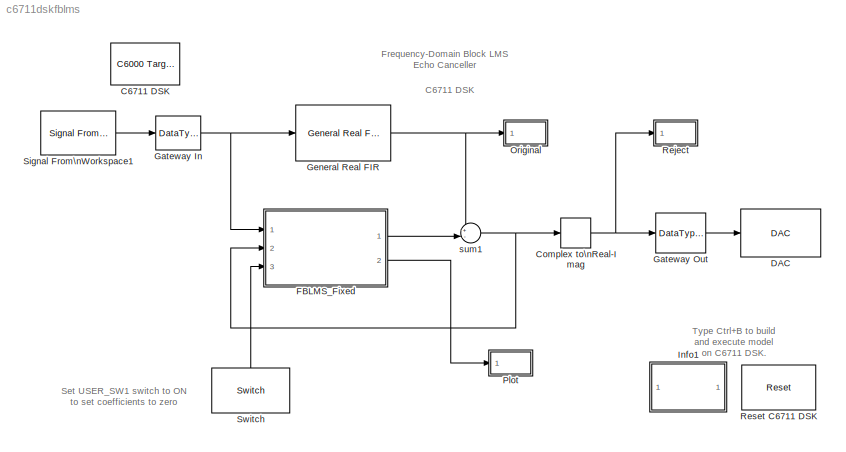
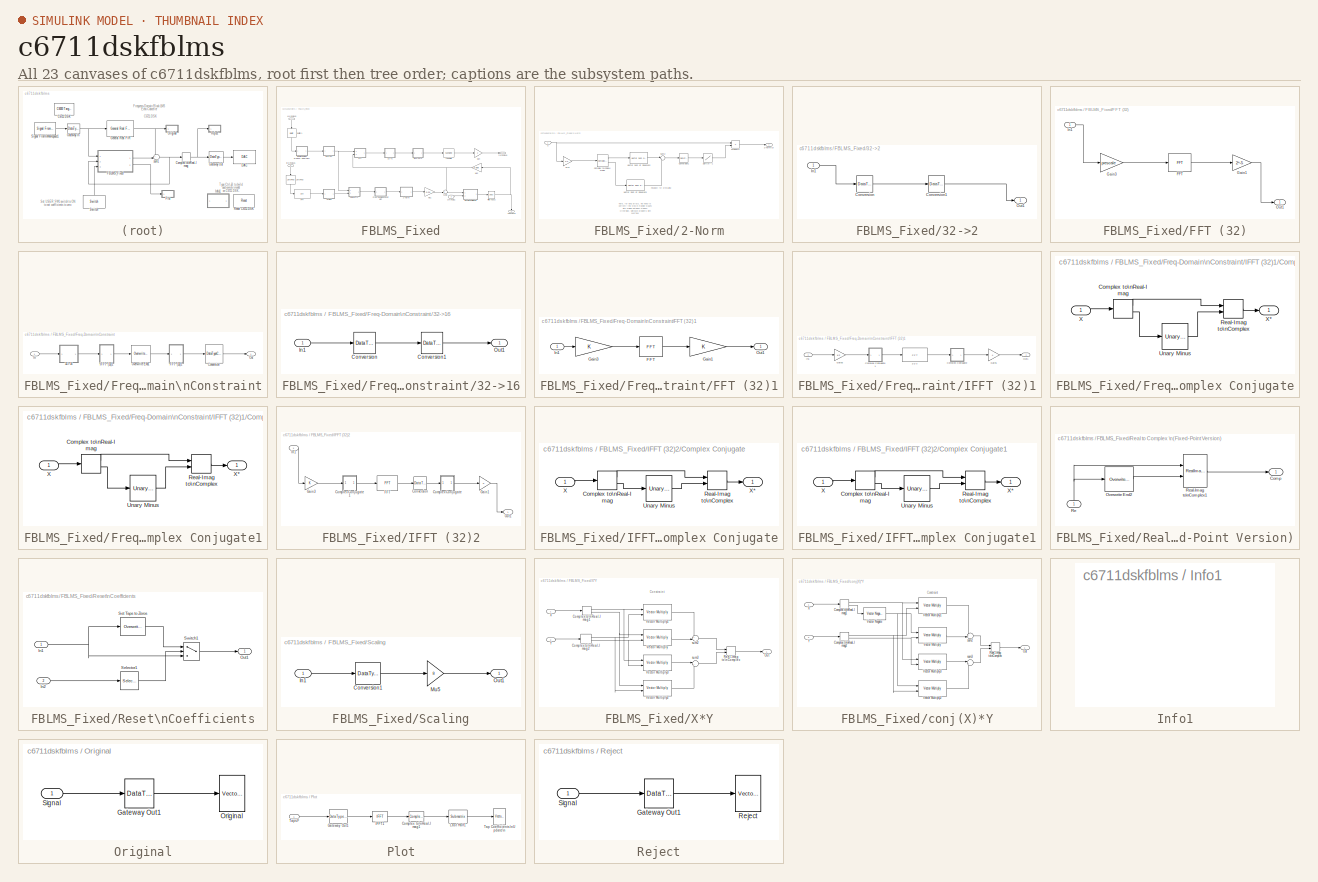
[diagram: thumbnail index - all 23 canvases of the model, root first then tree order]
MODEL c6711dskfblms
KIND model
CONFIG PreLoadFcn = load handel; audiofrag = int16(y(1:2^16).*2^14); clear y;
BLOCK [Reference] C6711 DSK  REF=c6000tgtpreflib/C6000 Target\nPreferences
  Ports = []
  ShowPortLabels = on
  SourceBlock = c6000tgtpreflib/C6000 Target\nPreferences
  SourceType = C6000 Target Preferences
  UserData = DataTag0
  UserDataPersistent = on
BLOCK [ComplexToRealImag] Complex to\nReal-Imag
  Output = Real
  Ports = [1, 1]
BLOCK [Reference] DAC  REF=c6711dsklib/DAC
  DacAtten = 0.0
  OverflowMode = Saturate
  Ports = [1]
  Scaling = Integer Value
  SourceBlock = c6711dsklib/DAC
  SourceType = C6711DSK DAC
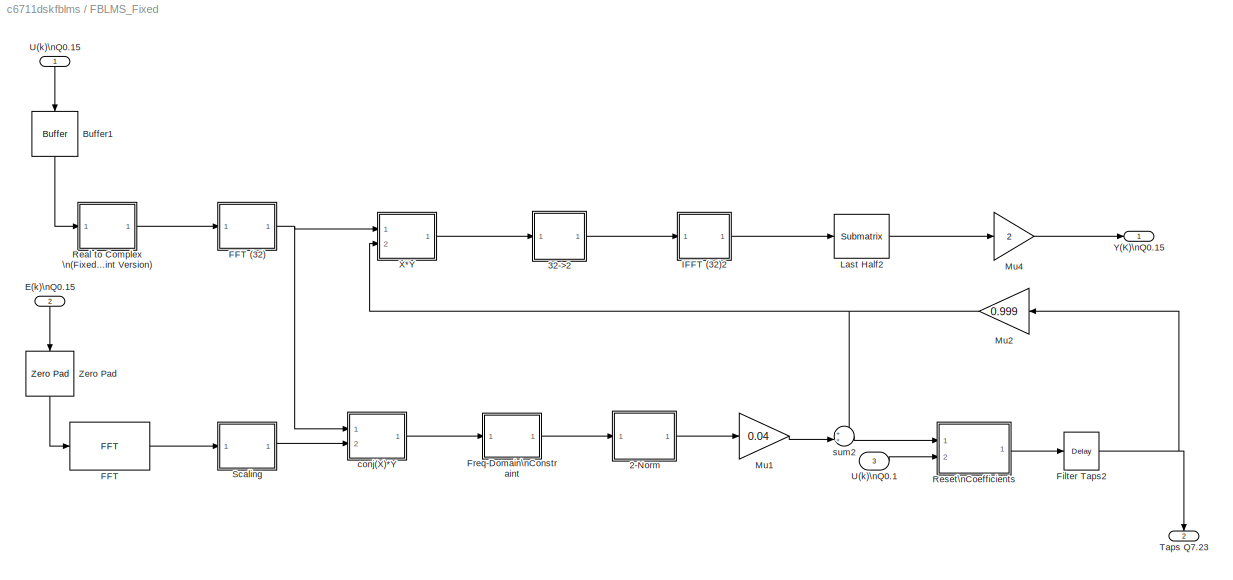
BLOCK [SubSystem] FBLMS_Fixed
  MinAlgLoopOccurrences = off
  Ports = [3, 2]
  PropExecContextAcrossSSBoundary = on
  RTWSystemCode = Auto
  TreatAsAtomicUnit = off
BLOCK [SubSystem] FBLMS_Fixed/2-Norm
  AncestorBlock = FixedBlocks/2-Norm
  MinAlgLoopOccurrences = off
  Ports = [1, 1]
  PropExecContextAcrossSSBoundary = on
  RTWSystemCode = Auto
  TreatAsAtomicUnit = off
BLOCK [Outport] FBLMS_Fixed/2-Norm/2-norm(u)
  BusOutputAsStruct = off
  IconDisplay = Port number
BLOCK [ComplexToRealImag] FBLMS_Fixed/2-Norm/Complex to\nReal-Imag1
  Output = Real and imag
  Ports = [1, 2]
BLOCK [DataTypeConversion] FBLMS_Fixed/2-Norm/Conversion1
  OutDataType = ufix(16)
  OutDataTypeMode = Specify via dialog
  OutScaling = 2^-13
  RndMeth = Floor
BLOCK [Gain] FBLMS_Fixed/2-Norm/Mu1
  Gain = 1/2
  OutDataType = sfix(32)
  OutScaling = 2^-31
  ParameterDataTypeMode = Inherit via internal rule
  SaturateOnIntegerOverflow = off
BLOCK [Product] FBLMS_Fixed/2-Norm/Product3
  InputSameDT = off
  OutDataType = sfix(32)
  OutDataTypeMode = Inherit via internal rule
  OutScaling = 2^30
  Ports = [2, 1]
  RndMeth = Floor
BLOCK [Lookup] FBLMS_Fixed/2-Norm/Sqrt(x)^-1
  DialogController = Simulink.DDGSource
  InputValues = [0.004 0.01 linspace(0.02,8,62)]
  LookUpMeth = Use Input Nearest
  OutDataType = ufix(16)
  OutDataTypeMode = Specify via dialog
  OutScaling = 2^-12
  OutputValues = 1./sqrt([0.004 0.01 linspace(0.02,8,62)])
BLOCK [Sum] FBLMS_Fixed/2-Norm/Sum2
  IconShape = round
  InputSameDT = off
  Inputs = |++
  OutDataType = ufix(16)
  OutScaling = 2^14
  Ports = [2, 1]
BLOCK [Reference] FBLMS_Fixed/2-Norm/Vector Sum of Squares2  REF=tic62dsplib/Vector Sum of Squares
  Ports = [1, 1]
  SourceBlock = tic62dsplib/Vector Sum of Squares
  SourceType = Vector Sum of Squares
BLOCK [Reference] FBLMS_Fixed/2-Norm/Vector Sum of Squares3  REF=tic62dsplib/Vector Sum of Squares
  Ports = [1, 1]
  SourceBlock = tic62dsplib/Vector Sum of Squares
  SourceType = Vector Sum of Squares
BLOCK [Inport] FBLMS_Fixed/2-Norm/u
  IconDisplay = Port number
  LatchInput = off
BLOCK [SubSystem] FBLMS_Fixed/32->2
  MinAlgLoopOccurrences = off
  Ports = [1, 1]
  PropExecContextAcrossSSBoundary = on
  RTWSystemCode = Auto
  TreatAsAtomicUnit = off
BLOCK [DataTypeConversion] FBLMS_Fixed/32->2/Conversion
  OutDataTypeMode = Specify via dialog
  OutScaling = 2^-10
  RndMeth = Floor
BLOCK [DataTypeConversion] FBLMS_Fixed/32->2/Conversion1
  ConvertRealWorld = Stored Integer (SI)
  OutDataType = sfrac(16)
  OutDataTypeMode = Specify via dialog
  OutScaling = 2^-7
  RndMeth = Floor
  SaturateOnIntegerOverflow = off
BLOCK [Inport] FBLMS_Fixed/32->2/In1
  IconDisplay = Port number
  LatchInput = off
BLOCK [Outport] FBLMS_Fixed/32->2/Out1
  BusOutputAsStruct = off
  IconDisplay = Port number
BLOCK [Reference] FBLMS_Fixed/Buffer1  REF=dspbuff3/Buffer
  N = 128
  Ports = [1, 1]
  SourceBlock = dspbuff3/Buffer
  SourceType = Buffer
  V = 64
  ic = 0
BLOCK [Inport] FBLMS_Fixed/E(k)\nQ0.15
  IconDisplay = Port number
  LatchInput = off
  Port = 2
BLOCK [Reference] FBLMS_Fixed/FFT  REF=tic62dsplib/FFT
  Ports = [1, 1]
  SourceBlock = tic62dsplib/FFT
  SourceType = FFT
BLOCK [SubSystem] FBLMS_Fixed/FFT (32)
  AncestorBlock = FixedBlocks/FFT (32)
  MaskCallbackString = x = get_param(gcb,'MaskValues');\ntscale = [2 2 4 4 8 8 16 16 32 32];\nindx = round(log(eval(x{1}))/log(2)-2);\nscale = tscale(indx);\nx{3} = num2str(scale/eval(x{2}));\nset_param(gcb,'MaskValues',x);|x = get_param(gcb,'MaskValues');\ntscale = [2 2 4 4 8 8 16 16 32 32];\nindx = round(log(eval(x{1}))/log(2)-2);\nscale = tscale(indx);\nx{3} = num2str(scale/eval(x{2}));\nset_param(gcb,'MaskValues',x)...<+2ch>
  MaskDescription = This block performs an IFFT with output returned in normal (NOT bit-reversed order). \nThe implemented uses the FFT block.  This includes some scaling to avoid overflow \nAND some scaling to compensate for scaling factors in FFT16X16R block
  MaskEnableString = on,on,off
  MaskIconFrame = on
  MaskIconOpaque = on
  MaskIconRotate = none
  MaskIconUnits = autoscale
  MaskPromptString = Length (8 to 16384)|Prescaling (8:32->1/4, 64:512->1/8)|Postscaling
  MaskStyleString = edit,edit,edit
  MaskTabNameString = ,,
  MaskToolTipString = on,on,on
  MaskTunableValueString = on,off,on
  MaskValueString = 128|1/4|32
  MaskVarAliasString = ,,
  MaskVariables = nlen=@1;prescale=@2;postscale=@3;
  MaskVisibilityString = on,on,on
  MinAlgLoopOccurrences = off
  Ports = [1, 1]
  PropExecContextAcrossSSBoundary = on
  RTWSystemCode = Auto
  TreatAsAtomicUnit = off
BLOCK [Reference] FBLMS_Fixed/FFT (32)/FFT  REF=tic62dsplib/FFT
  Ports = [1, 1]
  SourceBlock = tic62dsplib/FFT
  SourceType = FFT
BLOCK [Gain] FBLMS_Fixed/FFT (32)/Gain1
  Gain = 2^-5
  OutDataTypeMode = Inherit via internal rule
  ParameterDataTypeMode = Specify via dialog
BLOCK [Gain] FBLMS_Fixed/FFT (32)/Gain3
  Gain = prescale
BLOCK [Inport] FBLMS_Fixed/FFT (32)/In1
  IconDisplay = Port number
  LatchInput = off
BLOCK [Outport] FBLMS_Fixed/FFT (32)/Out1
  BusOutputAsStruct = off
  IconDisplay = Port number
BLOCK [Reference] FBLMS_Fixed/Filter Taps2  REF=dspsigops/Delay
  Ports = [1, 1]
  SourceBlock = dspsigops/Delay
  SourceType = Delay
  delay = 1
  dif_ic_for_ch = off
  dif_ic_for_dly = off
  dly_unit = Samples
  ic = 0
  ic_detail = off
  reset_popup = None
BLOCK [SubSystem] FBLMS_Fixed/Freq-Domain\nConstraint
  MinAlgLoopOccurrences = off
  Ports = [1, 1]
  PropExecContextAcrossSSBoundary = on
  RTWSystemCode = Auto
  TreatAsAtomicUnit = off
BLOCK [SubSystem] FBLMS_Fixed/Freq-Domain\nConstraint/32->16
  MinAlgLoopOccurrences = off
  Ports = [1, 1]
  PropExecContextAcrossSSBoundary = on
  RTWSystemCode = Auto
  TreatAsAtomicUnit = off
BLOCK [DataTypeConversion] FBLMS_Fixed/Freq-Domain\nConstraint/32->16/Conversion
  OutDataTypeMode = Specify via dialog
  OutScaling = 2^-9
  RndMeth = Nearest
BLOCK [DataTypeConversion] FBLMS_Fixed/Freq-Domain\nConstraint/32->16/Conversion1
  ConvertRealWorld = Stored Integer (SI)
  OutDataType = sfrac(16)
  OutDataTypeMode = Specify via dialog
  OutScaling = 2^-7
  RndMeth = Floor
  SaturateOnIntegerOverflow = off
BLOCK [Inport] FBLMS_Fixed/Freq-Domain\nConstraint/32->16/In1
  IconDisplay = Port number
  LatchInput = off
BLOCK [Outport] FBLMS_Fixed/Freq-Domain\nConstraint/32->16/Out1
  BusOutputAsStruct = off
  IconDisplay = Port number
BLOCK [DataTypeConversion] FBLMS_Fixed/Freq-Domain\nConstraint/Conversion
  OutDataTypeMode = Specify via dialog
  OutScaling = 2^-14
  RndMeth = Floor
  SaturateOnIntegerOverflow = off
BLOCK [SubSystem] FBLMS_Fixed/Freq-Domain\nConstraint/FFT (32)1
  MaskCallbackString = x = get_param(gcb,'MaskValues');\ntscale = [2 2 4 4 8 8 16 16 32 32];\nindx = round(log(eval(x{1}))/log(2)-2);\nscale = tscale(indx);\nx{3} = num2str(scale/eval(x{2}));\nset_param(gcb,'MaskValues',x);|x = get_param(gcb,'MaskValues');\ntscale = [2 2 4 4 8 8 16 16 32 32];\nindx = round(log(eval(x{1}))/log(2)-2);\nscale = tscale(indx);\nx{3} = num2str(scale/eval(x{2}));\nset_param(gcb,'MaskValues',x)...<+2ch>
  MaskDescription = This block performs an IFFT with output returned in normal (NOT bit-reversed order). \nThe implemented uses the FFT block.  This includes some scaling to avoid overflow \nAND some scaling to compensate for scaling factors in FFT16X16R block
  MaskEnableString = on,on,off
  MaskIconFrame = on
  MaskIconOpaque = on
  MaskIconRotate = none
  MaskIconUnits = autoscale
  MaskPromptString = Length (8 to 16384)|Prescaling (8:32->1/4, 64:512->1/8)|Postscaling
  MaskStyleString = edit,edit,edit
  MaskTabNameString = ,,
  MaskToolTipString = on,on,on
  MaskTunableValueString = on,off,on
  MaskValueString = 128|1/4|32
  MaskVarAliasString = ,,
  MaskVariables = nlen=@1;prescale=@2;postscale=@3;
  MaskVisibilityString = on,on,on
  MinAlgLoopOccurrences = off
  Ports = [1, 1]
  PropExecContextAcrossSSBoundary = on
  RTWSystemCode = Auto
  TreatAsAtomicUnit = off
BLOCK [Reference] FBLMS_Fixed/Freq-Domain\nConstraint/FFT (32)1/FFT  REF=tic62dsplib/FFT
  Ports = [1, 1]
  SourceBlock = tic62dsplib/FFT
  SourceType = FFT
BLOCK [Gain] FBLMS_Fixed/Freq-Domain\nConstraint/FFT (32)1/Gain1
  OutDataTypeMode = Inherit via internal rule
  ParameterDataTypeMode = Specify via dialog
BLOCK [Gain] FBLMS_Fixed/Freq-Domain\nConstraint/FFT (32)1/Gain3
BLOCK [Inport] FBLMS_Fixed/Freq-Domain\nConstraint/FFT (32)1/In1
  IconDisplay = Port number
  LatchInput = off
BLOCK [Outport] FBLMS_Fixed/Freq-Domain\nConstraint/FFT (32)1/Out1
  BusOutputAsStruct = off
  IconDisplay = Port number
BLOCK [SubSystem] FBLMS_Fixed/Freq-Domain\nConstraint/IFFT (32)1
  MaskCallbackString = x = get_param(gcb,'MaskValues');\nscale = 2.^(floor(log(eval(x{1}))/log(4))+1);\nx{3} = num2str(1/(scale*eval(x{2})));\nset_param(gcb,'MaskValues',x);|x = get_param(gcb,'MaskValues');\nscale = 2.^(floor(log(eval(x{1}))/log(4))+1);\nx{3} = num2str(1/(scale*eval(x{2})));\nset_param(gcb,'MaskValues',x);|
  MaskEnableString = on,on,off
  MaskIconFrame = on
  MaskIconOpaque = on
  MaskIconRotate = none
  MaskIconUnits = autoscale
  MaskInitialization = scale = 2.^(floor(log(nlen)/log(4))+1);\npostscale = 1/(scale*prescale);
  MaskPromptString = Length (8 to 16384)|Prescaling|Postscaling
  MaskStyleString = edit,edit,edit
  MaskTabNameString = ,,
  MaskToolTipString = on,on,on
  MaskTunableValueString = on,off,on
  MaskValueString = 128|1/2|0.125
  MaskVarAliasString = ,,
  MaskVariables = nlen=@1;prescale=@2;postscale=@3;
  MaskVisibilityString = on,on,on
  MinAlgLoopOccurrences = off
  Ports = [1, 1]
  PropExecContextAcrossSSBoundary = on
  RTWSystemCode = Auto
  TreatAsAtomicUnit = off
BLOCK [SubSystem] FBLMS_Fixed/Freq-Domain\nConstraint/IFFT (32)1/Complex Conjugate
  MinAlgLoopOccurrences = off
  Ports = [1, 1]
  PropExecContextAcrossSSBoundary = on
  RTWSystemCode = Auto
  TreatAsAtomicUnit = off
BLOCK [ComplexToRealImag] FBLMS_Fixed/Freq-Domain\nConstraint/IFFT (32)1/Complex Conjugate/Complex to\nReal-Imag
  Output = Real and imag
  Ports = [1, 2]
BLOCK [RealImagToComplex] FBLMS_Fixed/Freq-Domain\nConstraint/IFFT (32)1/Complex Conjugate/Real-Imag to\nComplex
  Input = Real and imag
  Ports = [2, 1]
BLOCK [Reference] FBLMS_Fixed/Freq-Domain\nConstraint/IFFT (32)1/Complex Conjugate/Unary Minus  REF=simulink/Math\nOperations/Unary Minus
  DoSatur = off
  Ports = [1, 1]
  SourceBlock = simulink/Math\nOperations/Unary Minus
  SourceType = Unary Minus
BLOCK [Inport] FBLMS_Fixed/Freq-Domain\nConstraint/IFFT (32)1/Complex Conjugate/X
  IconDisplay = Port number
  LatchInput = off
BLOCK [Outport] FBLMS_Fixed/Freq-Domain\nConstraint/IFFT (32)1/Complex Conjugate/X*
  BusOutputAsStruct = off
  IconDisplay = Port number
BLOCK [SubSystem] FBLMS_Fixed/Freq-Domain\nConstraint/IFFT (32)1/Complex Conjugate1
  MinAlgLoopOccurrences = off
  Ports = [1, 1]
  PropExecContextAcrossSSBoundary = on
  RTWSystemCode = Auto
  TreatAsAtomicUnit = off
BLOCK [ComplexToRealImag] FBLMS_Fixed/Freq-Domain\nConstraint/IFFT (32)1/Complex Conjugate1/Complex to\nReal-Imag
  Output = Real and imag
  Ports = [1, 2]
BLOCK [RealImagToComplex] FBLMS_Fixed/Freq-Domain\nConstraint/IFFT (32)1/Complex Conjugate1/Real-Imag to\nComplex
  Input = Real and imag
  Ports = [2, 1]
BLOCK [Reference] FBLMS_Fixed/Freq-Domain\nConstraint/IFFT (32)1/Complex Conjugate1/Unary Minus  REF=simulink/Math\nOperations/Unary Minus
  DoSatur = off
  Ports = [1, 1]
  SourceBlock = simulink/Math\nOperations/Unary Minus
  SourceType = Unary Minus
BLOCK [Inport] FBLMS_Fixed/Freq-Domain\nConstraint/IFFT (32)1/Complex Conjugate1/X
  IconDisplay = Port number
  LatchInput = off
BLOCK [Outport] FBLMS_Fixed/Freq-Domain\nConstraint/IFFT (32)1/Complex Conjugate1/X*
  BusOutputAsStruct = off
  IconDisplay = Port number
BLOCK [Reference] FBLMS_Fixed/Freq-Domain\nConstraint/IFFT (32)1/FFT  REF=tic62dsplib/FFT
  Ports = [1, 1]
  SourceBlock = tic62dsplib/FFT
  SourceType = FFT
BLOCK [Gain] FBLMS_Fixed/Freq-Domain\nConstraint/IFFT (32)1/Gain1
  Gain = 4
  ParameterDataTypeMode = Inherit via internal rule
BLOCK [Gain] FBLMS_Fixed/Freq-Domain\nConstraint/IFFT (32)1/Gain3
  Gain = 1/2
BLOCK [Inport] FBLMS_Fixed/Freq-Domain\nConstraint/IFFT (32)1/In1
  IconDisplay = Port number
  LatchInput = off
BLOCK [Outport] FBLMS_Fixed/Freq-Domain\nConstraint/IFFT (32)1/Out1
  BusOutputAsStruct = off
  IconDisplay = Port number
BLOCK [Inport] FBLMS_Fixed/Freq-Domain\nConstraint/In
  IconDisplay = Port number
  LatchInput = off
BLOCK [Outport] FBLMS_Fixed/Freq-Domain\nConstraint/Out
  BusOutputAsStruct = off
  IconDisplay = Port number
BLOCK [Reference] FBLMS_Fixed/Freq-Domain\nConstraint/Overwrite End1  REF=dspmtrx3/Overwrite Values
  AttributesFormatString = \\n
  ColEndIndex = 1
  ColEndMode = Last
  ColSpan = All columns
  ColStartIndex = 1
  ColStartMode = First
  ConstValue = 0
  DiagEndIndex = 4
  DiagEndMode = Index
  DiagSpan = Range of elements
  DiagStartIndex = 2
  DiagStartMode = Index
  OverWriteDiag = Submatrix
  Ports = [1, 1]
  RowEndIndex = -1
  RowEndMode = Last
  RowSpan = Range of rows
  RowStartIndex = 1
  RowStartMode = Middle
  SourceBlock = dspmtrx3/Overwrite Values
  SourceType = Overwrite Values
  valFrom2ndIP = Specify via dialog
BLOCK [SubSystem] FBLMS_Fixed/IFFT (32)2
  MaskCallbackString = x = get_param(gcb,'MaskValues');\nscale = 2.^(floor(log(eval(x{1}))/log(4))+1);\nx{3} = num2str(1/(scale*eval(x{2})));\nset_param(gcb,'MaskValues',x);|x = get_param(gcb,'MaskValues');\nscale = 2.^(floor(log(eval(x{1}))/log(4))+1);\nx{3} = num2str(1/(scale*eval(x{2})));\nset_param(gcb,'MaskValues',x);|
  MaskEnableString = on,on,off
  MaskIconFrame = on
  MaskIconOpaque = on
  MaskIconRotate = none
  MaskIconUnits = autoscale
  MaskInitialization = scale = 2.^(floor(log(nlen)/log(4))+1);\npostscale = 1/(scale*prescale);
  MaskPromptString = Length (8 to 16384)|Prescaling|Postscaling
  MaskStyleString = edit,edit,edit
  MaskTabNameString = ,,
  MaskToolTipString = on,on,on
  MaskTunableValueString = on,off,on
  MaskValueString = 128|1/2|0.125
  MaskVarAliasString = ,,
  MaskVariables = nlen=@1;prescale=@2;postscale=@3;
  MaskVisibilityString = on,on,on
  MinAlgLoopOccurrences = off
  Ports = [1, 1]
  PropExecContextAcrossSSBoundary = on
  RTWSystemCode = Auto
  TreatAsAtomicUnit = off
BLOCK [SubSystem] FBLMS_Fixed/IFFT (32)2/Complex Conjugate
  MinAlgLoopOccurrences = off
  Ports = [1, 1]
  PropExecContextAcrossSSBoundary = on
  RTWSystemCode = Auto
  TreatAsAtomicUnit = off
BLOCK [ComplexToRealImag] FBLMS_Fixed/IFFT (32)2/Complex Conjugate/Complex to\nReal-Imag
  Output = Real and imag
  Ports = [1, 2]
BLOCK [RealImagToComplex] FBLMS_Fixed/IFFT (32)2/Complex Conjugate/Real-Imag to\nComplex
  Input = Real and imag
  Ports = [2, 1]
BLOCK [Reference] FBLMS_Fixed/IFFT (32)2/Complex Conjugate/Unary Minus  REF=simulink/Math\nOperations/Unary Minus
  DoSatur = off
  Ports = [1, 1]
  SourceBlock = simulink/Math\nOperations/Unary Minus
  SourceType = Unary Minus
BLOCK [Inport] FBLMS_Fixed/IFFT (32)2/Complex Conjugate/X
  IconDisplay = Port number
  LatchInput = off
BLOCK [Outport] FBLMS_Fixed/IFFT (32)2/Complex Conjugate/X*
  BusOutputAsStruct = off
  IconDisplay = Port number
BLOCK [SubSystem] FBLMS_Fixed/IFFT (32)2/Complex Conjugate1
  MinAlgLoopOccurrences = off
  Ports = [1, 1]
  PropExecContextAcrossSSBoundary = on
  RTWSystemCode = Auto
  TreatAsAtomicUnit = off
BLOCK [ComplexToRealImag] FBLMS_Fixed/IFFT (32)2/Complex Conjugate1/Complex to\nReal-Imag
  Output = Real and imag
  Ports = [1, 2]
BLOCK [RealImagToComplex] FBLMS_Fixed/IFFT (32)2/Complex Conjugate1/Real-Imag to\nComplex
  Input = Real and imag
  Ports = [2, 1]
BLOCK [Reference] FBLMS_Fixed/IFFT (32)2/Complex Conjugate1/Unary Minus  REF=simulink/Math\nOperations/Unary Minus
  DoSatur = off
  Ports = [1, 1]
  SourceBlock = simulink/Math\nOperations/Unary Minus
  SourceType = Unary Minus
BLOCK [Inport] FBLMS_Fixed/IFFT (32)2/Complex Conjugate1/X
  IconDisplay = Port number
  LatchInput = off
BLOCK [Outport] FBLMS_Fixed/IFFT (32)2/Complex Conjugate1/X*
  BusOutputAsStruct = off
  IconDisplay = Port number
BLOCK [DataTypeConversion] FBLMS_Fixed/IFFT (32)2/Conversion
  OutDataTypeMode = Specify via dialog
  OutScaling = 2^-15
  RndMeth = Floor
  SaturateOnIntegerOverflow = off
BLOCK [Reference] FBLMS_Fixed/IFFT (32)2/FFT  REF=tic62dsplib/FFT
  Ports = [1, 1]
  SourceBlock = tic62dsplib/FFT
  SourceType = FFT
BLOCK [Gain] FBLMS_Fixed/IFFT (32)2/Gain1
BLOCK [Gain] FBLMS_Fixed/IFFT (32)2/Gain3
BLOCK [Inport] FBLMS_Fixed/IFFT (32)2/In1
  IconDisplay = Port number
  LatchInput = off
BLOCK [Outport] FBLMS_Fixed/IFFT (32)2/Out1
  BusOutputAsStruct = off
  IconDisplay = Port number
BLOCK [Reference] FBLMS_Fixed/Last Half2  REF=dspmtrx3/Submatrix
  ColEndIndex = 1
  ColEndMode = Last
  ColSpan = All columns
  ColStartIndex = 1
  ColStartMode = First
  Ports = [1, 1]
  RowEndIndex = L
  RowEndMode = Last
  RowSpan = Range of rows
  RowStartIndex = 0
  RowStartMode = Offset from middle
  SourceBlock = dspmtrx3/Submatrix
  SourceType = Submatrix
BLOCK [Gain] FBLMS_Fixed/Mu1
  Gain = 0.04
  OutDataType = sfix(32)
  OutDataTypeMode = Specify via dialog
  OutScaling = 2^-31
  ParameterDataTypeMode = Inherit via internal rule
  SaturateOnIntegerOverflow = off
BLOCK [Gain] FBLMS_Fixed/Mu2
  Gain = 0.999
  OutDataTypeMode = Inherit via back propagation
BLOCK [Gain] FBLMS_Fixed/Mu4
  Gain = 2
  ParameterDataTypeMode = Inherit via internal rule
BLOCK [SubSystem] FBLMS_Fixed/Real to Complex \n(Fixed-Point Version)
  MinAlgLoopOccurrences = off
  Ports = [1, 1]
  PropExecContextAcrossSSBoundary = on
  RTWSystemCode = Auto
  TreatAsAtomicUnit = off
BLOCK [Outport] FBLMS_Fixed/Real to Complex \n(Fixed-Point Version)/Comp
  BusOutputAsStruct = off
  IconDisplay = Port number
BLOCK [Reference] FBLMS_Fixed/Real to Complex \n(Fixed-Point Version)/Overwrite End2  REF=dspmtrx3/Overwrite Values
  AttributesFormatString = \\n
  ColEndIndex = 1
  ColEndMode = Last
  ColSpan = All columns
  ColStartIndex = 1
  ColStartMode = First
  ConstValue = 0
  DiagEndIndex = 4
  DiagEndMode = Index
  DiagSpan = Range of elements
  DiagStartIndex = 2
  DiagStartMode = Index
  OverWriteDiag = Submatrix
  Ports = [1, 1]
  RowEndIndex = -1
  RowEndMode = Last
  RowSpan = Range of rows
  RowStartIndex = 1
  RowStartMode = First
  SourceBlock = dspmtrx3/Overwrite Values
  SourceType = Overwrite Values
  valFrom2ndIP = Specify via dialog
BLOCK [Inport] FBLMS_Fixed/Real to Complex \n(Fixed-Point Version)/Re
  IconDisplay = Port number
  LatchInput = off
BLOCK [RealImagToComplex] FBLMS_Fixed/Real to Complex \n(Fixed-Point Version)/Real-Imag to\nComplex1
  Input = Real and imag
  Ports = [2, 1]
BLOCK [SubSystem] FBLMS_Fixed/Reset\nCoefficients
  MinAlgLoopOccurrences = off
  Ports = [2, 1]
  PropExecContextAcrossSSBoundary = on
  RTWSystemCode = Auto
  TreatAsAtomicUnit = off
BLOCK [Inport] FBLMS_Fixed/Reset\nCoefficients/In1
  IconDisplay = Port number
  LatchInput = off
BLOCK [Inport] FBLMS_Fixed/Reset\nCoefficients/In2
  IconDisplay = Port number
  LatchInput = off
  Port = 2
BLOCK [Outport] FBLMS_Fixed/Reset\nCoefficients/Out1
  BusOutputAsStruct = off
  IconDisplay = Port number
BLOCK [Selector] FBLMS_Fixed/Reset\nCoefficients/Selector1
  InputPortWidth = 3
  Ports = [1, 1]
BLOCK [Reference] FBLMS_Fixed/Reset\nCoefficients/Set Taps to Zeros  REF=dspmtrx3/Overwrite Values
  AttributesFormatString = \\n
  ColEndIndex = 1
  ColEndMode = Last
  ColSpan = All columns
  ColStartIndex = 1
  ColStartMode = First
  ConstValue = 0
  DiagEndIndex = 4
  DiagEndMode = Index
  DiagSpan = Range of elements
  DiagStartIndex = 2
  DiagStartMode = Index
  OverWriteDiag = Submatrix
  Ports = [1, 1]
  RowEndIndex = -1
  RowEndMode = Last
  RowSpan = All rows
  RowStartIndex = 1
  RowStartMode = Middle
  SourceBlock = dspmtrx3/Overwrite Values
  SourceType = Overwrite Values
  valFrom2ndIP = Specify via dialog
BLOCK [Switch] FBLMS_Fixed/Reset\nCoefficients/Switch1
  SaturateOnIntegerOverflow = off
  Threshold = 1
  ZeroCross = off
BLOCK [SubSystem] FBLMS_Fixed/Scaling
  MinAlgLoopOccurrences = off
  Ports = [1, 1]
  PropExecContextAcrossSSBoundary = on
  RTWSystemCode = Auto
  TreatAsAtomicUnit = off
BLOCK [DataTypeConversion] FBLMS_Fixed/Scaling/Conversion1
  OutDataType = sfix(32)
  OutDataTypeMode = Specify via dialog
  OutScaling = 2^-24
  RndMeth = Floor
  SaturateOnIntegerOverflow = off
BLOCK [Inport] FBLMS_Fixed/Scaling/In1
  IconDisplay = Port number
  LatchInput = off
BLOCK [Gain] FBLMS_Fixed/Scaling/Mu5
  Gain = 8
  OutDataType = sfix(32)
BLOCK [Outport] FBLMS_Fixed/Scaling/Out1
  BusOutputAsStruct = off
  IconDisplay = Port number
BLOCK [Outport] FBLMS_Fixed/Taps Q7.23
  BusOutputAsStruct = off
  IconDisplay = Port number
  Port = 2
BLOCK [Inport] FBLMS_Fixed/U(k)\nQ0.1
  IconDisplay = Port number
  LatchInput = off
  Port = 3
BLOCK [Inport] FBLMS_Fixed/U(k)\nQ0.15
  IconDisplay = Port number
  LatchInput = off
BLOCK [SubSystem] FBLMS_Fixed/X*Y
  MinAlgLoopOccurrences = off
  Ports = [2, 1]
  PropExecContextAcrossSSBoundary = on
  RTWSystemCode = Auto
  TreatAsAtomicUnit = off
BLOCK [ComplexToRealImag] FBLMS_Fixed/X*Y/Complex to\nReal-Imag1
  Output = Real and imag
  Ports = [1, 2]
BLOCK [ComplexToRealImag] FBLMS_Fixed/X*Y/Complex to\nReal-Imag2
  Output = Real and imag
  Ports = [1, 2]
BLOCK [Outport] FBLMS_Fixed/X*Y/Out
  BusOutputAsStruct = off
  IconDisplay = Port number
BLOCK [RealImagToComplex] FBLMS_Fixed/X*Y/Real-Imag to\nComplex
  Input = Real and imag
  Ports = [2, 1]
BLOCK [Reference] FBLMS_Fixed/X*Y/Vector Multiply  REF=tic62dsplib/Vector Multiply
  Ports = [2, 1]
  SourceBlock = tic62dsplib/Vector Multiply
  SourceType = Vector Multiply
BLOCK [Reference] FBLMS_Fixed/X*Y/Vector Multiply1  REF=tic62dsplib/Vector Multiply
  Ports = [2, 1]
  SourceBlock = tic62dsplib/Vector Multiply
  SourceType = Vector Multiply
BLOCK [Reference] FBLMS_Fixed/X*Y/Vector Multiply2  REF=tic62dsplib/Vector Multiply
  Ports = [2, 1]
  SourceBlock = tic62dsplib/Vector Multiply
  SourceType = Vector Multiply
BLOCK [Reference] FBLMS_Fixed/X*Y/Vector Multiply3  REF=tic62dsplib/Vector Multiply
  Ports = [2, 1]
  SourceBlock = tic62dsplib/Vector Multiply
  SourceType = Vector Multiply
BLOCK [Inport] FBLMS_Fixed/X*Y/X
  IconDisplay = Port number
  LatchInput = off
BLOCK [Inport] FBLMS_Fixed/X*Y/Y
  IconDisplay = Port number
  LatchInput = off
  Port = 2
BLOCK [Sum] FBLMS_Fixed/X*Y/sum2
  IconShape = round
  Inputs = +-|
  OutDataType = sfrac(16)
  OutDataTypeMode = Inherit via internal rule
  Ports = [2, 1]
BLOCK [Sum] FBLMS_Fixed/X*Y/sum3
  IconShape = round
  Inputs = |++
  OutDataType = sfrac(16)
  OutDataTypeMode = Inherit via internal rule
  Ports = [2, 1]
BLOCK [Outport] FBLMS_Fixed/Y(K)\nQ0.15
  BusOutputAsStruct = off
  IconDisplay = Port number
BLOCK [Reference] FBLMS_Fixed/Zero Pad  REF=dspsigops/Zero Pad
  AttributesFormatString = \\n
  Ports = [1, 1]
  SourceBlock = dspsigops/Zero Pad
  SourceType = Zero Pad
  numOutCols = 1
  numOutRows = 128
  padNumOutColsSpecMethod = Next power of two
  padNumOutRowsSpecMethod = User-specified
  padSigAt = Beginning
  trunc_flag = None
  zpadAlong = Columns
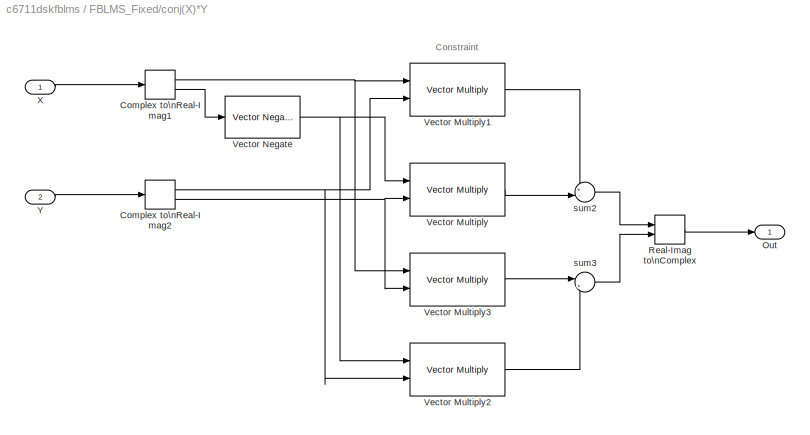
BLOCK [SubSystem] FBLMS_Fixed/conj(X)*Y
  MinAlgLoopOccurrences = off
  Ports = [2, 1]
  PropExecContextAcrossSSBoundary = on
  RTWSystemCode = Auto
  TreatAsAtomicUnit = off
BLOCK [ComplexToRealImag] FBLMS_Fixed/conj(X)*Y/Complex to\nReal-Imag1
  Output = Real and imag
  Ports = [1, 2]
BLOCK [ComplexToRealImag] FBLMS_Fixed/conj(X)*Y/Complex to\nReal-Imag2
  Output = Real and imag
  Ports = [1, 2]
BLOCK [Outport] FBLMS_Fixed/conj(X)*Y/Out
  BusOutputAsStruct = off
  IconDisplay = Port number
BLOCK [RealImagToComplex] FBLMS_Fixed/conj(X)*Y/Real-Imag to\nComplex
  Input = Real and imag
  Ports = [2, 1]
BLOCK [Reference] FBLMS_Fixed/conj(X)*Y/Vector Multiply  REF=tic62dsplib/Vector Multiply
  Ports = [2, 1]
  SourceBlock = tic62dsplib/Vector Multiply
  SourceType = Vector Multiply
BLOCK [Reference] FBLMS_Fixed/conj(X)*Y/Vector Multiply1  REF=tic62dsplib/Vector Multiply
  Ports = [2, 1]
  SourceBlock = tic62dsplib/Vector Multiply
  SourceType = Vector Multiply
BLOCK [Reference] FBLMS_Fixed/conj(X)*Y/Vector Multiply2  REF=tic62dsplib/Vector Multiply
  Ports = [2, 1]
  SourceBlock = tic62dsplib/Vector Multiply
  SourceType = Vector Multiply
BLOCK [Reference] FBLMS_Fixed/conj(X)*Y/Vector Multiply3  REF=tic62dsplib/Vector Multiply
  Ports = [2, 1]
  SourceBlock = tic62dsplib/Vector Multiply
  SourceType = Vector Multiply
BLOCK [Reference] FBLMS_Fixed/conj(X)*Y/Vector Negate  REF=tic62dsplib/Vector Negate
  Ports = [1, 1]
  SourceBlock = tic62dsplib/Vector Negate
  SourceType = Vector Negate
BLOCK [Inport] FBLMS_Fixed/conj(X)*Y/X
  IconDisplay = Port number
  LatchInput = off
BLOCK [Inport] FBLMS_Fixed/conj(X)*Y/Y
  IconDisplay = Port number
  LatchInput = off
  Port = 2
BLOCK [Sum] FBLMS_Fixed/conj(X)*Y/sum2
  IconShape = round
  Inputs = +-|
  OutDataType = sfrac(16)
  OutDataTypeMode = Inherit via internal rule
  Ports = [2, 1]
BLOCK [Sum] FBLMS_Fixed/conj(X)*Y/sum3
  IconShape = round
  Inputs = |++
  OutDataType = sfrac(16)
  OutDataTypeMode = Inherit via internal rule
  Ports = [2, 1]
BLOCK [Sum] FBLMS_Fixed/sum2
  IconShape = round
  InputSameDT = off
  Inputs = ++|
  OutDataType = sfix(32)
  OutDataTypeMode = Specify via dialog
  OutScaling = 2^-24
  Ports = [2, 1]
BLOCK [DataTypeConversion] Gateway In
  ConvertRealWorld = Stored Integer (SI)
  OutDataType = sfrac(16)
  OutDataTypeMode = Specify via dialog
  OutScaling = 2^-10
  RndMeth = Floor
  SaturateOnIntegerOverflow = off
BLOCK [DataTypeConversion] Gateway Out
  ConvertRealWorld = Stored Integer (SI)
  OutDataTypeMode = int16
  RndMeth = Floor
  SaturateOnIntegerOverflow = off
BLOCK [Reference] General Real FIR  REF=tic62dsplib/General Real FIR
  Ports = [1, 1]
  SourceBlock = tic62dsplib/General Real FIR
  SourceType = General Real FIR
  coeff_source = Specify via dialog
  coeffs = fir1(63,0.25)
  ic_arg = 0
BLOCK [SubSystem] Info1
  MaskDisplay = disp('Info')
  MaskIconFrame = on
  MaskIconOpaque = on
  MaskIconRotate = none
  MaskIconUnits = autoscale
  MaskType = Frame-Based Simulation Info
  MinAlgLoopOccurrences = off
  OpenFcn = web(fullfile(matlabroot,'toolbox','rtw','targets','tic6000','tic6000demos','html','fblms_doc.html'))
  Ports = []
  PropExecContextAcrossSSBoundary = on
  RTWSystemCode = Auto
  TreatAsAtomicUnit = off
BLOCK [SubSystem] Original
  MinAlgLoopOccurrences = off
  Ports = [1]
  PropExecContextAcrossSSBoundary = on
  RTWSystemCode = Auto
  SimViewingDevice = on
  TreatAsAtomicUnit = on
BLOCK [DataTypeConversion] Original/Gateway Out1
  OutDataTypeMode = double
  RndMeth = Floor
  SaturateOnIntegerOverflow = off
BLOCK [Reference] Original/Original  REF=dspsnks4/Vector\nScope
  AttributesFormatString = \\n\\n
  AxisGrid = on
  AxisLegend = off
  AxisProperties = off
  AxisZoom = off
  DisplayProperties = on
  Domain = Time
  FigPos = [89 447 428 214]
  FrameNumber = on
  HorizSpan = 10
  InheritXIncr = on
  LineProperties = off
  Memory = off
  OpenScopeAtSimStart = on
  OpenScopeImmediately = off
  Ports = [1]
  ScopeProperties = off
  ShowPortLabels = off
  SourceBlock = dspsnks4/Vector\nScope
  SourceType = Vector Scope
  XIncr = 1
  XLabel = Time
  XRange = [0...Fs/2]
  XUnits = Hertz
  YLabel = Amplitude
  YMax = 0.35
  YMin = -0.35
  YUnits = dB
BLOCK [Inport] Original/Signal
  IconDisplay = Port number
  LatchInput = off
BLOCK [SubSystem] Plot
  MinAlgLoopOccurrences = off
  Ports = [1]
  PropExecContextAcrossSSBoundary = on
  RTWSystemCode = Auto
  SimViewingDevice = on
  TreatAsAtomicUnit = on
BLOCK [ComplexToRealImag] Plot/Complex to\nReal-Imag1
  Output = Real
  Ports = [1, 1]
BLOCK [DataTypeConversion] Plot/Gateway Out1
  OutDataTypeMode = double
  RndMeth = Floor
  SaturateOnIntegerOverflow = off
BLOCK [Reference] Plot/IFFT1  REF=dspxfrm3/IFFT
  BitRevOrder = off
  CompMethod = Table lookup
  DialogController = dspDDGCreate
  DialogControllerArgs = DataTag1
  Ports = [1, 1]
  SkipNorm = off
  SourceBlock = dspxfrm3/IFFT
  SourceType = IFFT
  TableOpt = Speed
  accumFracLength = 24
  accumMode = Inherit via internal rule
  accumWordLength = 32
  additionalParams = off
  allowOverrides = on
  cs_in = off
  firstCoeffFracLength = 15
  firstCoeffMode = User-defined
  firstCoeffWordLength = 16
  mode = Real
  outputFracLength = 12
  outputMode = Same as input
  outputWordLength = 16
  overflowMode = off
  prodOutputFracLength = 24
  prodOutputMode = Inherit via internal rule
  prodOutputWordLength = 32
  roundingMode = Floor
BLOCK [Reference] Plot/Last Half1  REF=dspmtrx3/Submatrix
  ColEndIndex = 1
  ColEndMode = Last
  ColSpan = All columns
  ColStartIndex = 1
  ColStartMode = First
  Ports = [1, 1]
  RowEndIndex = 1
  RowEndMode = Middle
  RowSpan = Range of rows
  RowStartIndex = 1
  RowStartMode = Index
  SourceBlock = dspmtrx3/Submatrix
  SourceType = Submatrix
BLOCK [Reference] Plot/Tap Coefficients\nUpdate\n  REF=dspsnks4/Vector\nScope
  AttributesFormatString = \\n\\n
  AxisGrid = on
  AxisLegend = off
  AxisProperties = off
  AxisZoom = off
  DisplayProperties = on
  Domain = Time
  FigPos = [524 447 428 214]
  FrameNumber = on
  HorizSpan = 1
  InheritXIncr = on
  LineProperties = off
  Memory = off
  OpenScopeAtSimStart = on
  OpenScopeImmediately = off
  Ports = [1]
  ScopeProperties = off
  ShowPortLabels = off
  SourceBlock = dspsnks4/Vector\nScope
  SourceType = Vector Scope
  XIncr = 1
  XLabel = Time
  XRange = [0...Fs/2]
  XUnits = Hertz
  YLabel = Amplitude
  YMax = 3
  YMin = -1.1
  YUnits = dB
BLOCK [Inport] Plot/TapsF
  IconDisplay = Port number
  LatchInput = off
BLOCK [SubSystem] Reject
  MinAlgLoopOccurrences = off
  Ports = [1]
  PropExecContextAcrossSSBoundary = on
  RTWSystemCode = Auto
  SimViewingDevice = on
  TreatAsAtomicUnit = on
BLOCK [DataTypeConversion] Reject/Gateway Out1
  OutDataTypeMode = double
  RndMeth = Floor
  SaturateOnIntegerOverflow = off
BLOCK [Reference] Reject/Reject  REF=dspsnks4/Vector\nScope
  AttributesFormatString = \\n\\n
  AxisGrid = on
  AxisLegend = off
  AxisProperties = off
  AxisZoom = off
  DisplayProperties = on
  Domain = Time
  FigPos = [88 183 428 219]
  FrameNumber = on
  HorizSpan = 10
  InheritXIncr = on
  LineProperties = off
  Memory = off
  OpenScopeAtSimStart = on
  OpenScopeImmediately = off
  Ports = [1]
  ScopeProperties = off
  ShowPortLabels = off
  SourceBlock = dspsnks4/Vector\nScope
  SourceType = Vector Scope
  XIncr = 1
  XLabel = Time
  XRange = [0...Fs/2]
  XUnits = Hertz
  YLabel = Amplitude
  YMax = 0.35
  YMin = -0.35
  YUnits = dB
BLOCK [Inport] Reject/Signal
  IconDisplay = Port number
  LatchInput = off
BLOCK [Reference] Reset C6711 DSK  REF=c6711dsklib/Reset
  Ports = []
  ShowPortLabels = on
  SourceBlock = c6711dsklib/Reset
  SourceType = C6711DSK RESET
BLOCK [Reference] Signal From\nWorkspace1  REF=dspsrcs4/Signal From\nWorkspace
  OutputAfterFinalValue = Cyclic repetition
  Ports = [0, 1]
  ShowPortLabels = on
  SourceBlock = dspsrcs4/Signal From\nWorkspace
  SourceType = Signal From Workspace
  Ts = 1/8000
  X = audiofrag
  nsamps = 64
BLOCK [Reference] Switch  REF=c6711dsklib/Switch
  Ports = [0, 1]
  SourceBlock = c6711dsklib/Switch
  SourceType = C6711 DSK DIP Switch
  Ts = 64/8000
  dType = Boolean
  sw1 = off
  sw2 = off
  sw3 = off
BLOCK [Sum] sum1
  IconShape = round
  Inputs = +-|
  Ports = [2, 1]
ANNOTATION (root): C6711 DSK
ANNOTATION (root): Frequency-Domain Block LMS \nEcho Canceller
ANNOTATION (root): Set USER_SW1 switch to ON\nto set coefficients to zero
ANNOTATION (root): Type Ctrl+B to build\nand execute model\non C6711 DSK.
ANNOTATION FBLMS_Fixed/2-Norm: Note, for long arrays, we need to\nperfomr this step in multiple stages \nwith scaling between stages! \nOtherwise, we'll have problems with \noverflow
ANNOTATION FBLMS_Fixed/2-Norm: Readjust for prescaling
ANNOTATION FBLMS_Fixed/X*Y: Constraint
ANNOTATION FBLMS_Fixed/conj(X)*Y: Constraint
NET Complex to\nReal-Imag:1 -> Gateway Out:1, Reject:1
LINE FBLMS_Fixed/2-Norm/Complex to\nReal-Imag1:1 -> FBLMS_Fixed/2-Norm/Vector Sum of Squares2:1
LINE FBLMS_Fixed/2-Norm/Complex to\nReal-Imag1:2 -> FBLMS_Fixed/2-Norm/Vector Sum of Squares3:1
LINE FBLMS_Fixed/2-Norm/Conversion1:1 -> FBLMS_Fixed/2-Norm/Sqrt(x)^-1:1
LINE FBLMS_Fixed/2-Norm/Mu1:1 -> FBLMS_Fixed/2-Norm/Complex to\nReal-Imag1:1
LINE FBLMS_Fixed/2-Norm/Product3:1 -> FBLMS_Fixed/2-Norm/2-norm(u):1
LINE FBLMS_Fixed/2-Norm/Sqrt(x)^-1:1 -> FBLMS_Fixed/2-Norm/Product3:2
LINE FBLMS_Fixed/2-Norm/Sum2:1 -> FBLMS_Fixed/2-Norm/Conversion1:1
LINE FBLMS_Fixed/2-Norm/Vector Sum of Squares2:1 -> FBLMS_Fixed/2-Norm/Sum2:1
LINE FBLMS_Fixed/2-Norm/Vector Sum of Squares3:1 -> FBLMS_Fixed/2-Norm/Sum2:2
NET FBLMS_Fixed/2-Norm/u:1 -> FBLMS_Fixed/2-Norm/Mu1:1, FBLMS_Fixed/2-Norm/Product3:1
LINE FBLMS_Fixed/2-Norm:1 -> FBLMS_Fixed/Mu1:1
LINE FBLMS_Fixed/32->2/Conversion1:1 -> FBLMS_Fixed/32->2/Out1:1
LINE FBLMS_Fixed/32->2/Conversion:1 -> FBLMS_Fixed/32->2/Conversion1:1
LINE FBLMS_Fixed/32->2/In1:1 -> FBLMS_Fixed/32->2/Conversion:1
LINE FBLMS_Fixed/32->2:1 -> FBLMS_Fixed/IFFT (32)2:1
LINE FBLMS_Fixed/Buffer1:1 -> FBLMS_Fixed/Real to Complex \n(Fixed-Point Version):1
LINE FBLMS_Fixed/E(k)\nQ0.15:1 -> FBLMS_Fixed/Zero Pad:1
LINE FBLMS_Fixed/FFT (32)/FFT:1 -> FBLMS_Fixed/FFT (32)/Gain1:1
LINE FBLMS_Fixed/FFT (32)/Gain1:1 -> FBLMS_Fixed/FFT (32)/Out1:1
LINE FBLMS_Fixed/FFT (32)/Gain3:1 -> FBLMS_Fixed/FFT (32)/FFT:1
LINE FBLMS_Fixed/FFT (32)/In1:1 -> FBLMS_Fixed/FFT (32)/Gain3:1
NET FBLMS_Fixed/FFT (32):1 -> FBLMS_Fixed/X*Y:1, FBLMS_Fixed/conj(X)*Y:1
LINE FBLMS_Fixed/FFT:1 -> FBLMS_Fixed/Scaling:1
NET FBLMS_Fixed/Filter Taps2:1 -> FBLMS_Fixed/Mu2:1, FBLMS_Fixed/Taps Q7.23:1
LINE FBLMS_Fixed/Freq-Domain\nConstraint/32->16/Conversion1:1 -> FBLMS_Fixed/Freq-Domain\nConstraint/32->16/Out1:1
LINE FBLMS_Fixed/Freq-Domain\nConstraint/32->16/Conversion:1 -> FBLMS_Fixed/Freq-Domain\nConstraint/32->16/Conversion1:1
LINE FBLMS_Fixed/Freq-Domain\nConstraint/32->16/In1:1 -> FBLMS_Fixed/Freq-Domain\nConstraint/32->16/Conversion:1
LINE FBLMS_Fixed/Freq-Domain\nConstraint/32->16:1 -> FBLMS_Fixed/Freq-Domain\nConstraint/IFFT (32)1:1
LINE FBLMS_Fixed/Freq-Domain\nConstraint/Conversion:1 -> FBLMS_Fixed/Freq-Domain\nConstraint/Out:1
LINE FBLMS_Fixed/Freq-Domain\nConstraint/FFT (32)1/FFT:1 -> FBLMS_Fixed/Freq-Domain\nConstraint/FFT (32)1/Gain1:1
LINE FBLMS_Fixed/Freq-Domain\nConstraint/FFT (32)1/Gain1:1 -> FBLMS_Fixed/Freq-Domain\nConstraint/FFT (32)1/Out1:1
LINE FBLMS_Fixed/Freq-Domain\nConstraint/FFT (32)1/Gain3:1 -> FBLMS_Fixed/Freq-Domain\nConstraint/FFT (32)1/FFT:1
LINE FBLMS_Fixed/Freq-Domain\nConstraint/FFT (32)1/In1:1 -> FBLMS_Fixed/Freq-Domain\nConstraint/FFT (32)1/Gain3:1
LINE FBLMS_Fixed/Freq-Domain\nConstraint/FFT (32)1:1 -> FBLMS_Fixed/Freq-Domain\nConstraint/Conversion:1
LINE FBLMS_Fixed/Freq-Domain\nConstraint/IFFT (32)1/Complex Conjugate/Complex to\nReal-Imag:1 -> FBLMS_Fixed/Freq-Domain\nConstraint/IFFT (32)1/Complex Conjugate/Real-Imag to\nComplex:1
LINE FBLMS_Fixed/Freq-Domain\nConstraint/IFFT (32)1/Complex Conjugate/Complex to\nReal-Imag:2 -> FBLMS_Fixed/Freq-Domain\nConstraint/IFFT (32)1/Complex Conjugate/Unary Minus:1
LINE FBLMS_Fixed/Freq-Domain\nConstraint/IFFT (32)1/Complex Conjugate/Real-Imag to\nComplex:1 -> FBLMS_Fixed/Freq-Domain\nConstraint/IFFT (32)1/Complex Conjugate/X*:1
LINE FBLMS_Fixed/Freq-Domain\nConstraint/IFFT (32)1/Complex Conjugate/Unary Minus:1 -> FBLMS_Fixed/Freq-Domain\nConstraint/IFFT (32)1/Complex Conjugate/Real-Imag to\nComplex:2
LINE FBLMS_Fixed/Freq-Domain\nConstraint/IFFT (32)1/Complex Conjugate/X:1 -> FBLMS_Fixed/Freq-Domain\nConstraint/IFFT (32)1/Complex Conjugate/Complex to\nReal-Imag:1
LINE FBLMS_Fixed/Freq-Domain\nConstraint/IFFT (32)1/Complex Conjugate1/Complex to\nReal-Imag:1 -> FBLMS_Fixed/Freq-Domain\nConstraint/IFFT (32)1/Complex Conjugate1/Real-Imag to\nComplex:1
LINE FBLMS_Fixed/Freq-Domain\nConstraint/IFFT (32)1/Complex Conjugate1/Complex to\nReal-Imag:2 -> FBLMS_Fixed/Freq-Domain\nConstraint/IFFT (32)1/Complex Conjugate1/Unary Minus:1
LINE FBLMS_Fixed/Freq-Domain\nConstraint/IFFT (32)1/Complex Conjugate1/Real-Imag to\nComplex:1 -> FBLMS_Fixed/Freq-Domain\nConstraint/IFFT (32)1/Complex Conjugate1/X*:1
LINE FBLMS_Fixed/Freq-Domain\nConstraint/IFFT (32)1/Complex Conjugate1/Unary Minus:1 -> FBLMS_Fixed/Freq-Domain\nConstraint/IFFT (32)1/Complex Conjugate1/Real-Imag to\nComplex:2
LINE FBLMS_Fixed/Freq-Domain\nConstraint/IFFT (32)1/Complex Conjugate1/X:1 -> FBLMS_Fixed/Freq-Domain\nConstraint/IFFT (32)1/Complex Conjugate1/Complex to\nReal-Imag:1
LINE FBLMS_Fixed/Freq-Domain\nConstraint/IFFT (32)1/Complex Conjugate1:1 -> FBLMS_Fixed/Freq-Domain\nConstraint/IFFT (32)1/FFT:1
LINE FBLMS_Fixed/Freq-Domain\nConstraint/IFFT (32)1/Complex Conjugate:1 -> FBLMS_Fixed/Freq-Domain\nConstraint/IFFT (32)1/Gain1:1
LINE FBLMS_Fixed/Freq-Domain\nConstraint/IFFT (32)1/FFT:1 -> FBLMS_Fixed/Freq-Domain\nConstraint/IFFT (32)1/Complex Conjugate:1
LINE FBLMS_Fixed/Freq-Domain\nConstraint/IFFT (32)1/Gain1:1 -> FBLMS_Fixed/Freq-Domain\nConstraint/IFFT (32)1/Out1:1
LINE FBLMS_Fixed/Freq-Domain\nConstraint/IFFT (32)1/Gain3:1 -> FBLMS_Fixed/Freq-Domain\nConstraint/IFFT (32)1/Complex Conjugate1:1
LINE FBLMS_Fixed/Freq-Domain\nConstraint/IFFT (32)1/In1:1 -> FBLMS_Fixed/Freq-Domain\nConstraint/IFFT (32)1/Gain3:1
LINE FBLMS_Fixed/Freq-Domain\nConstraint/IFFT (32)1:1 -> FBLMS_Fixed/Freq-Domain\nConstraint/Overwrite End1:1
LINE FBLMS_Fixed/Freq-Domain\nConstraint/In:1 -> FBLMS_Fixed/Freq-Domain\nConstraint/32->16:1
LINE FBLMS_Fixed/Freq-Domain\nConstraint/Overwrite End1:1 -> FBLMS_Fixed/Freq-Domain\nConstraint/FFT (32)1:1
LINE FBLMS_Fixed/Freq-Domain\nConstraint:1 -> FBLMS_Fixed/2-Norm:1
LINE FBLMS_Fixed/IFFT (32)2/Complex Conjugate/Complex to\nReal-Imag:1 -> FBLMS_Fixed/IFFT (32)2/Complex Conjugate/Real-Imag to\nComplex:1
LINE FBLMS_Fixed/IFFT (32)2/Complex Conjugate/Complex to\nReal-Imag:2 -> FBLMS_Fixed/IFFT (32)2/Complex Conjugate/Unary Minus:1
LINE FBLMS_Fixed/IFFT (32)2/Complex Conjugate/Real-Imag to\nComplex:1 -> FBLMS_Fixed/IFFT (32)2/Complex Conjugate/X*:1
LINE FBLMS_Fixed/IFFT (32)2/Complex Conjugate/Unary Minus:1 -> FBLMS_Fixed/IFFT (32)2/Complex Conjugate/Real-Imag to\nComplex:2
LINE FBLMS_Fixed/IFFT (32)2/Complex Conjugate/X:1 -> FBLMS_Fixed/IFFT (32)2/Complex Conjugate/Complex to\nReal-Imag:1
LINE FBLMS_Fixed/IFFT (32)2/Complex Conjugate1/Complex to\nReal-Imag:1 -> FBLMS_Fixed/IFFT (32)2/Complex Conjugate1/Real-Imag to\nComplex:1
LINE FBLMS_Fixed/IFFT (32)2/Complex Conjugate1/Complex to\nReal-Imag:2 -> FBLMS_Fixed/IFFT (32)2/Complex Conjugate1/Unary Minus:1
LINE FBLMS_Fixed/IFFT (32)2/Complex Conjugate1/Real-Imag to\nComplex:1 -> FBLMS_Fixed/IFFT (32)2/Complex Conjugate1/X*:1
LINE FBLMS_Fixed/IFFT (32)2/Complex Conjugate1/Unary Minus:1 -> FBLMS_Fixed/IFFT (32)2/Complex Conjugate1/Real-Imag to\nComplex:2
LINE FBLMS_Fixed/IFFT (32)2/Complex Conjugate1/X:1 -> FBLMS_Fixed/IFFT (32)2/Complex Conjugate1/Complex to\nReal-Imag:1
LINE FBLMS_Fixed/IFFT (32)2/Complex Conjugate1:1 -> FBLMS_Fixed/IFFT (32)2/FFT:1
LINE FBLMS_Fixed/IFFT (32)2/Complex Conjugate:1 -> FBLMS_Fixed/IFFT (32)2/Gain1:1
LINE FBLMS_Fixed/IFFT (32)2/Conversion:1 -> FBLMS_Fixed/IFFT (32)2/Complex Conjugate:1
LINE FBLMS_Fixed/IFFT (32)2/FFT:1 -> FBLMS_Fixed/IFFT (32)2/Conversion:1
LINE FBLMS_Fixed/IFFT (32)2/Gain1:1 -> FBLMS_Fixed/IFFT (32)2/Out1:1
LINE FBLMS_Fixed/IFFT (32)2/Gain3:1 -> FBLMS_Fixed/IFFT (32)2/Complex Conjugate1:1
LINE FBLMS_Fixed/IFFT (32)2/In1:1 -> FBLMS_Fixed/IFFT (32)2/Gain3:1
LINE FBLMS_Fixed/IFFT (32)2:1 -> FBLMS_Fixed/Last Half2:1
LINE FBLMS_Fixed/Last Half2:1 -> FBLMS_Fixed/Mu4:1
LINE FBLMS_Fixed/Mu1:1 -> FBLMS_Fixed/sum2:2
NET FBLMS_Fixed/Mu2:1 -> FBLMS_Fixed/X*Y:2, FBLMS_Fixed/sum2:1
LINE FBLMS_Fixed/Mu4:1 -> FBLMS_Fixed/Y(K)\nQ0.15:1
LINE FBLMS_Fixed/Real to Complex \n(Fixed-Point Version)/Overwrite End2:1 -> FBLMS_Fixed/Real to Complex \n(Fixed-Point Version)/Real-Imag to\nComplex1:2
NET FBLMS_Fixed/Real to Complex \n(Fixed-Point Version)/Re:1 -> FBLMS_Fixed/Real to Complex \n(Fixed-Point Version)/Overwrite End2:1, FBLMS_Fixed/Real to Complex \n(Fixed-Point Version)/Real-Imag to\nComplex1:1
LINE FBLMS_Fixed/Real to Complex \n(Fixed-Point Version)/Real-Imag to\nComplex1:1 -> FBLMS_Fixed/Real to Complex \n(Fixed-Point Version)/Comp:1
LINE FBLMS_Fixed/Real to Complex \n(Fixed-Point Version):1 -> FBLMS_Fixed/FFT (32):1
NET FBLMS_Fixed/Reset\nCoefficients/In1:1 -> FBLMS_Fixed/Reset\nCoefficients/Set Taps to Zeros:1, FBLMS_Fixed/Reset\nCoefficients/Switch1:3
LINE FBLMS_Fixed/Reset\nCoefficients/In2:1 -> FBLMS_Fixed/Reset\nCoefficients/Selector1:1
LINE FBLMS_Fixed/Reset\nCoefficients/Selector1:1 -> FBLMS_Fixed/Reset\nCoefficients/Switch1:2
LINE FBLMS_Fixed/Reset\nCoefficients/Set Taps to Zeros:1 -> FBLMS_Fixed/Reset\nCoefficients/Switch1:1
LINE FBLMS_Fixed/Reset\nCoefficients/Switch1:1 -> FBLMS_Fixed/Reset\nCoefficients/Out1:1
LINE FBLMS_Fixed/Reset\nCoefficients:1 -> FBLMS_Fixed/Filter Taps2:1
LINE FBLMS_Fixed/Scaling/Conversion1:1 -> FBLMS_Fixed/Scaling/Mu5:1
LINE FBLMS_Fixed/Scaling/In1:1 -> FBLMS_Fixed/Scaling/Conversion1:1
LINE FBLMS_Fixed/Scaling/Mu5:1 -> FBLMS_Fixed/Scaling/Out1:1
LINE FBLMS_Fixed/Scaling:1 -> FBLMS_Fixed/conj(X)*Y:2
LINE FBLMS_Fixed/U(k)\nQ0.15:1 -> FBLMS_Fixed/Buffer1:1
LINE FBLMS_Fixed/U(k)\nQ0.1:1 -> FBLMS_Fixed/Reset\nCoefficients:2
NET FBLMS_Fixed/X*Y/Complex to\nReal-Imag1:1 -> FBLMS_Fixed/X*Y/Vector Multiply1:1, FBLMS_Fixed/X*Y/Vector Multiply3:1
NET FBLMS_Fixed/X*Y/Complex to\nReal-Imag1:2 -> FBLMS_Fixed/X*Y/Vector Multiply2:1, FBLMS_Fixed/X*Y/Vector Multiply:1
NET FBLMS_Fixed/X*Y/Complex to\nReal-Imag2:1 -> FBLMS_Fixed/X*Y/Vector Multiply1:2, FBLMS_Fixed/X*Y/Vector Multiply2:2
NET FBLMS_Fixed/X*Y/Complex to\nReal-Imag2:2 -> FBLMS_Fixed/X*Y/Vector Multiply3:2, FBLMS_Fixed/X*Y/Vector Multiply:2
LINE FBLMS_Fixed/X*Y/Real-Imag to\nComplex:1 -> FBLMS_Fixed/X*Y/Out:1
LINE FBLMS_Fixed/X*Y/Vector Multiply1:1 -> FBLMS_Fixed/X*Y/sum2:1
LINE FBLMS_Fixed/X*Y/Vector Multiply2:1 -> FBLMS_Fixed/X*Y/sum3:2
LINE FBLMS_Fixed/X*Y/Vector Multiply3:1 -> FBLMS_Fixed/X*Y/sum3:1
LINE FBLMS_Fixed/X*Y/Vector Multiply:1 -> FBLMS_Fixed/X*Y/sum2:2
LINE FBLMS_Fixed/X*Y/X:1 -> FBLMS_Fixed/X*Y/Complex to\nReal-Imag1:1
LINE FBLMS_Fixed/X*Y/Y:1 -> FBLMS_Fixed/X*Y/Complex to\nReal-Imag2:1
LINE FBLMS_Fixed/X*Y/sum2:1 -> FBLMS_Fixed/X*Y/Real-Imag to\nComplex:1
LINE FBLMS_Fixed/X*Y/sum3:1 -> FBLMS_Fixed/X*Y/Real-Imag to\nComplex:2
LINE FBLMS_Fixed/X*Y:1 -> FBLMS_Fixed/32->2:1
LINE FBLMS_Fixed/Zero Pad:1 -> FBLMS_Fixed/FFT:1
NET FBLMS_Fixed/conj(X)*Y/Complex to\nReal-Imag1:1 -> FBLMS_Fixed/conj(X)*Y/Vector Multiply1:1, FBLMS_Fixed/conj(X)*Y/Vector Multiply3:1
LINE FBLMS_Fixed/conj(X)*Y/Complex to\nReal-Imag1:2 -> FBLMS_Fixed/conj(X)*Y/Vector Negate:1
NET FBLMS_Fixed/conj(X)*Y/Complex to\nReal-Imag2:1 -> FBLMS_Fixed/conj(X)*Y/Vector Multiply1:2, FBLMS_Fixed/conj(X)*Y/Vector Multiply2:2
NET FBLMS_Fixed/conj(X)*Y/Complex to\nReal-Imag2:2 -> FBLMS_Fixed/conj(X)*Y/Vector Multiply3:2, FBLMS_Fixed/conj(X)*Y/Vector Multiply:2
LINE FBLMS_Fixed/conj(X)*Y/Real-Imag to\nComplex:1 -> FBLMS_Fixed/conj(X)*Y/Out:1
LINE FBLMS_Fixed/conj(X)*Y/Vector Multiply1:1 -> FBLMS_Fixed/conj(X)*Y/sum2:1
LINE FBLMS_Fixed/conj(X)*Y/Vector Multiply2:1 -> FBLMS_Fixed/conj(X)*Y/sum3:2
LINE FBLMS_Fixed/conj(X)*Y/Vector Multiply3:1 -> FBLMS_Fixed/conj(X)*Y/sum3:1
LINE FBLMS_Fixed/conj(X)*Y/Vector Multiply:1 -> FBLMS_Fixed/conj(X)*Y/sum2:2
NET FBLMS_Fixed/conj(X)*Y/Vector Negate:1 -> FBLMS_Fixed/conj(X)*Y/Vector Multiply2:1, FBLMS_Fixed/conj(X)*Y/Vector Multiply:1
LINE FBLMS_Fixed/conj(X)*Y/X:1 -> FBLMS_Fixed/conj(X)*Y/Complex to\nReal-Imag1:1
LINE FBLMS_Fixed/conj(X)*Y/Y:1 -> FBLMS_Fixed/conj(X)*Y/Complex to\nReal-Imag2:1
LINE FBLMS_Fixed/conj(X)*Y/sum2:1 -> FBLMS_Fixed/conj(X)*Y/Real-Imag to\nComplex:1
LINE FBLMS_Fixed/conj(X)*Y/sum3:1 -> FBLMS_Fixed/conj(X)*Y/Real-Imag to\nComplex:2
LINE FBLMS_Fixed/conj(X)*Y:1 -> FBLMS_Fixed/Freq-Domain\nConstraint:1
LINE FBLMS_Fixed/sum2:1 -> FBLMS_Fixed/Reset\nCoefficients:1
LINE FBLMS_Fixed:1 -> sum1:2
LINE FBLMS_Fixed:2 -> Plot:1
NET Gateway In:1 -> FBLMS_Fixed:1, General Real FIR:1
LINE Gateway Out:1 -> DAC:1
NET General Real FIR:1 -> Original:1, sum1:1
LINE Original/Gateway Out1:1 -> Original/Original:1
LINE Original/Signal:1 -> Original/Gateway Out1:1
LINE Plot/Complex to\nReal-Imag1:1 -> Plot/Last Half1:1
LINE Plot/Gateway Out1:1 -> Plot/IFFT1:1
LINE Plot/IFFT1:1 -> Plot/Complex to\nReal-Imag1:1
LINE Plot/Last Half1:1 -> Plot/Tap Coefficients\nUpdate\n:1
LINE Plot/TapsF:1 -> Plot/Gateway Out1:1
LINE Reject/Gateway Out1:1 -> Reject/Reject:1
LINE Reject/Signal:1 -> Reject/Gateway Out1:1
LINE Signal From\nWorkspace1:1 -> Gateway In:1
LINE Switch:1 -> FBLMS_Fixed:3
NET sum1:1 -> Complex to\nReal-Imag:1, FBLMS_Fixed:2
note: NET lines group one-source signal fan-out (src -> all destinations, sorted); 1:1 wires keep LINE
